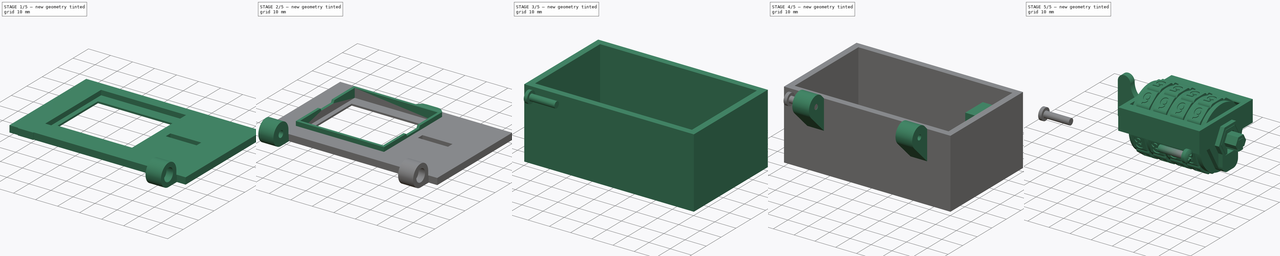
[diagram: build sequence overview — one tinted view per stage of 5, left to right]
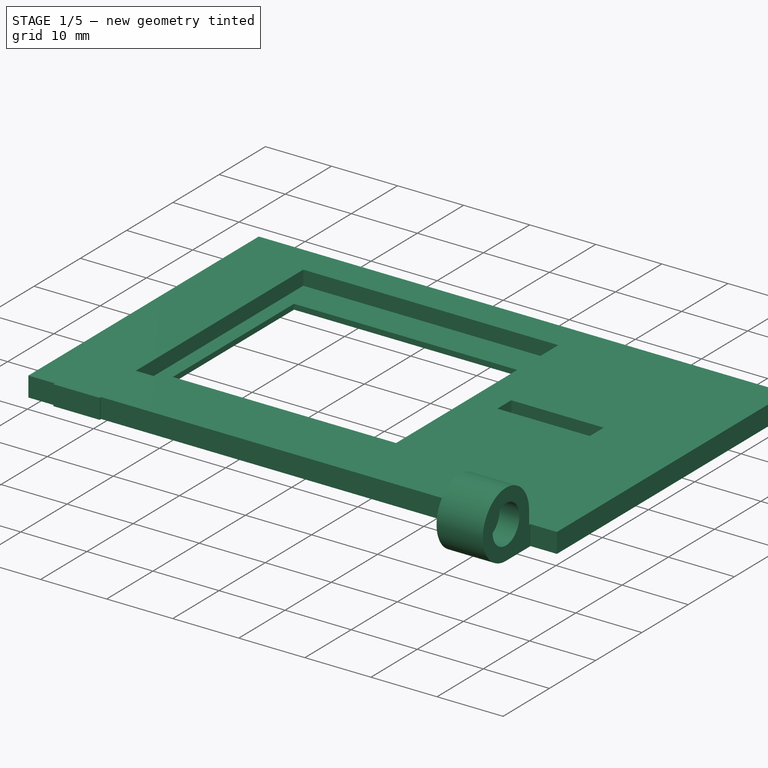
[diagram: stage 1 of 5 — iso view after this stage's code; geometry added in this stage tinted green]
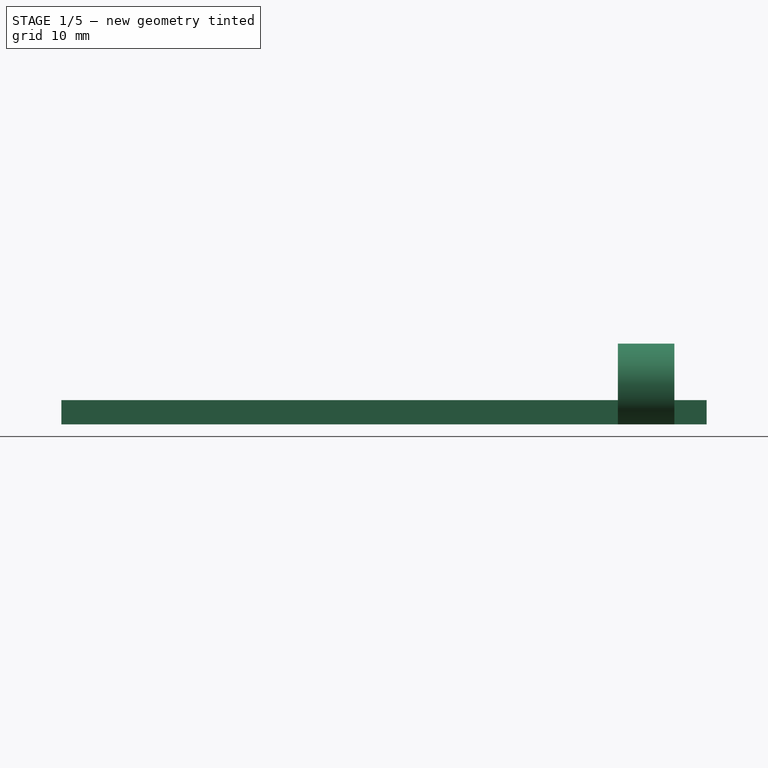
[diagram: stage 1 of 5 — front view after this stage's code; geometry added in this stage tinted green]
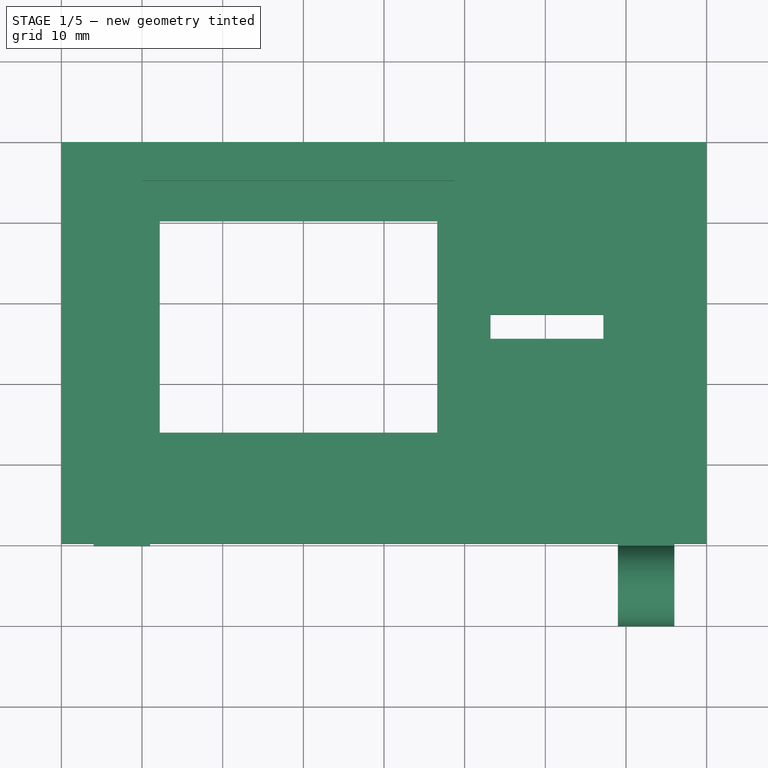
[diagram: stage 1 of 5 — top view after this stage's code; geometry added in this stage tinted green]
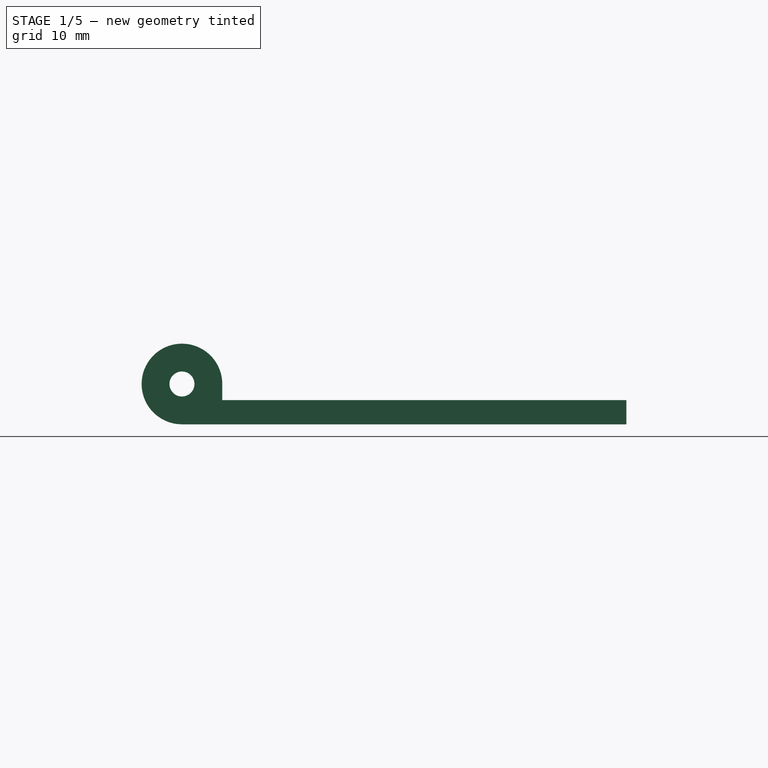
[diagram: stage 1 of 5 — right view after this stage's code; geometry added in this stage tinted green]
FCSTD DOCUMENT  (FreeCAD 0.20R29410 (Git))
Label: sample-box
Comment: FreeCAD-models by mgesteiro -- https://github.com/mgesteiro/FreeCAD-models
License: Creative Commons Attribution-ShareAlike
LicenseURL: http://creativecommons.org/licenses/by-sa/4.0/
objects: Sketcher::SketchObject×12, PartDesign::Pad×9, Part::Feature×4, PartDesign::Pocket×3, PartDesign::Fillet×3, PartDesign::Mirrored×2, PartDesign::Body×2, Part::FeaturePython×2, PartDesign::Chamfer×1, Part::Compound×1, App::DocumentObjectGroup×1
note: 55 computed .brp shape members not serialized (recipe doc carries the construction recipe); baked Part::Feature solids carry a one-line shape summary decoded from their .brp

FEATURE [Sketcher::SketchObject] Sketch  label="Sketch-cover-base"
  FullyConstrained = true
  MapMode = 5
  Support = -> [XY_Plane]
  sketch-geometry (20):
    g0: LineSegment StartX=-40 StartY=30 StartZ=0 EndX=40 EndY=30 EndZ=0
    g1: LineSegment StartX=-27.8 StartY=20.2 StartZ=0 EndX=6.6 EndY=20.2 EndZ=0
    g2: LineSegment StartX=6.6 StartY=20.2 StartZ=0 EndX=6.6 EndY=-6 EndZ=0
    g3: LineSegment StartX=6.6 StartY=-6 StartZ=0 EndX=-27.8 EndY=-6 EndZ=0
    g4: LineSegment StartX=-27.8 StartY=-6 StartZ=0 EndX=-27.8 EndY=20.2 EndZ=0
    g5: LineSegment StartX=13.2 StartY=8.6 StartZ=0 EndX=27.2 EndY=8.6 EndZ=0
    g6: LineSegment StartX=27.2 StartY=8.6 StartZ=0 EndX=27.2 EndY=5.6 EndZ=0
    g7: LineSegment StartX=27.2 StartY=5.6 StartZ=0 EndX=13.2 EndY=5.6 EndZ=0
    g8: LineSegment StartX=13.2 StartY=5.6 StartZ=0 EndX=13.2 EndY=8.6 EndZ=0
    g9: LineSegment StartX=-40 StartY=30 StartZ=0 EndX=-40 EndY=-19.8 EndZ=0
    g10: LineSegment StartX=-40 StartY=-19.8 StartZ=0 EndX=-36 EndY=-19.8 EndZ=0
    g11: LineSegment StartX=-36 StartY=-19.8 StartZ=0 EndX=-36 EndY=-20.1 EndZ=0
    g12: LineSegment StartX=-36 StartY=-20.1 StartZ=0 EndX=-29 EndY=-20.1 EndZ=0
    g13: LineSegment StartX=36 StartY=-20.1 StartZ=0 EndX=36 EndY=-19.8 EndZ=0
    g14: LineSegment StartX=36 StartY=-19.8 StartZ=0 EndX=40 EndY=-19.8 EndZ=0
    g15: LineSegment StartX=40 StartY=-19.8 StartZ=0 EndX=40 EndY=30 EndZ=0
    g16: LineSegment StartX=-29 StartY=-20.1 StartZ=0 EndX=-29 EndY=-19.8 EndZ=0
    g17: LineSegment StartX=-29 StartY=-19.8 StartZ=0 EndX=29 EndY=-19.8 EndZ=0
    g18: LineSegment StartX=29 StartY=-19.8 StartZ=0 EndX=29 EndY=-20.1 EndZ=0
    g19: LineSegment StartX=29 StartY=-20.1 StartZ=0 EndX=36 EndY=-20.1 EndZ=0
  constraints (59):
    c: DistanceX(g0,g0) = 80
    c: Coincident(g1,g2)
    c: Coincident(g2,g3)
    c: Coincident(g3,g4)
    c: Coincident(g4,g1)
    c: Horizontal(g1)
    c: Horizontal(g3)
    c: Vertical(g2)
    c: Vertical(g4)
    c: DistanceX(g1,g1) = 34.4
    c: DistanceY(g2,g2) = 26.2
    c: DistanceX(g2) = 6.6
    c: DistanceY(g2) = -6
    c: Coincident(g5,g6)
    c: Coincident(g6,g7)
    c: Coincident(g7,g8)
    c: Coincident(g8,g5)
    c: Horizontal(g5)
    c: Horizontal(g7)
    c: Vertical(g6)
    c: Vertical(g8)
    c: DistanceY(g6,g6) = 3
    c: DistanceX(g7,g7) = 14
    c: DistanceY(g5,g1) = 11.6
    c: DistanceX(g1,g5) = 6.6
    c: Coincident(g0,g9)
    c: Coincident(g9,g10)
    c: Horizontal(g10)
    c: Coincident(g10,g11)
    c: Vertical(g11)
    c: Coincident(g11,g12)
    c: Coincident(g19,g13)
    c: Vertical(g13)
    c: Coincident(g13,g14)
    c: Horizontal(g14)
    c: Coincident(g14,g15)
    c: Coincident(g15,g0)
    c: Horizontal(g10,g13)
    c: Equal(g10,g14)
    c: DistanceX(g14,g14) = 4
    c: DistanceY(g0) = 30
    c: Vertical(g16)
    c: Coincident(g16,g17)
    c: Horizontal(g17)
    c: Coincident(g17,g18)
    c: Vertical(g18)
    c: Coincident(g12,g16)
    c: Coincident(g19,g18)
    c: DistanceY(g9) = -19.8
    c: Horizontal(g12)
    c: DistanceX(g12,g12) = 7
    c: Vertical(g9)
    c: Symmetric(g0,g0,g-2)
    c: Horizontal(g16,g10)
    c: Horizontal(g12,g18)
    c: Horizontal(g19)
    c: Equal(g12,g19)
    c: Vertical(g15)
    c: DistanceY(g11,g11) = 0.3
FEATURE [PartDesign::Pad] Pad  label="Pad-cover-base"
  Direction = (0,0,1)
  Length = 0.8
  Length2 = 10
  Profile = -> Sketch
  ReferenceAxis = -> Sketch [N_Axis]
  Type = 0
FEATURE [Sketcher::SketchObject] Sketch001  label="Sketch-cover-lock-support"
  AttachmentOffset = pos=(0,0,0.8) rot=(0,0,1;0rad)
  ExternalGeometry = -> [Pad]
  FullyConstrained = true
  MapMode = 5
  Placement = pos=(0,0,0.8) rot=(0,0,1;0rad)
  Support = -> [XY_Plane]
  sketch-geometry (20):
    g0: LineSegment StartX=-29.9 StartY=25.2 StartZ=0 EndX=8.7 EndY=25.2 EndZ=0
    g1: LineSegment StartX=8.7 StartY=25.2 StartZ=0 EndX=8.7 EndY=-11 EndZ=0
    g2: LineSegment StartX=8.7 StartY=-11 StartZ=0 EndX=-29.9 EndY=-11 EndZ=0
    g3: LineSegment StartX=-29.9 StartY=-11 StartZ=0 EndX=-29.9 EndY=25.2 EndZ=0
    g4: LineSegment StartX=-40 StartY=30 StartZ=0 EndX=-40 EndY=-19.8 EndZ=0
    g5: LineSegment StartX=-40 StartY=-19.8 StartZ=0 EndX=-36 EndY=-19.8 EndZ=0
    g6: LineSegment StartX=-36 StartY=-19.8 StartZ=0 EndX=-36 EndY=-20.1 EndZ=0
    g7: LineSegment StartX=-36 StartY=-20.1 StartZ=0 EndX=-29 EndY=-20.1 EndZ=0
    g8: LineSegment StartX=-29 StartY=-20.1 StartZ=0 EndX=-29 EndY=-19.8 EndZ=0
    g9: LineSegment StartX=-29 StartY=-19.8 StartZ=0 EndX=29 EndY=-19.8 EndZ=0
    g10: LineSegment StartX=29 StartY=-19.8 StartZ=0 EndX=29 EndY=-20.1 EndZ=0
    g11: LineSegment StartX=29 StartY=-20.1 StartZ=0 EndX=36 EndY=-20.1 EndZ=0
    g12: LineSegment StartX=36 StartY=-20.1 StartZ=0 EndX=36 EndY=-19.8 EndZ=0
    g13: LineSegment StartX=36 StartY=-19.8 StartZ=0 EndX=40 EndY=-19.8 EndZ=0
    g14: LineSegment StartX=40 StartY=-19.8 StartZ=0 EndX=40 EndY=30 EndZ=0
    g15: LineSegment StartX=40 StartY=30 StartZ=0 EndX=-40 EndY=30 EndZ=0
    g16: LineSegment StartX=13.2 StartY=8.6 StartZ=0 EndX=27.2 EndY=8.6 EndZ=0
    g17: LineSegment StartX=27.2 StartY=8.6 StartZ=0 EndX=27.2 EndY=5.6 EndZ=0
    g18: LineSegment StartX=27.2 StartY=5.6 StartZ=0 EndX=13.2 EndY=5.6 EndZ=0
    g19: LineSegment StartX=13.2 StartY=5.6 StartZ=0 EndX=13.2 EndY=8.6 EndZ=0
  constraints (49):
    c: Coincident(g0,g1)
    c: Coincident(g1,g2)
    c: Coincident(g2,g3)
    c: Coincident(g3,g0)
    c: Horizontal(g0)
    c: Horizontal(g2)
    c: Vertical(g1)
    c: Vertical(g3)
    c: DistanceY(g1,g1) = 36.2
    c: DistanceX(g2,g2) = 38.6
    c: DistanceX(g1) = 8.7
    c: DistanceY(g1) = -11
    c: Coincident(g-3,g4)
    c: Coincident(g4,g-3)
    c: Coincident(g4,g5)
    c: Horizontal(g5)
    c: Coincident(g5,g6)
    c: Coincident(g6,g-4)
    c: Vertical(g6)
    c: Coincident(g6,g7)
    c: Coincident(g7,g-4)
    c: Coincident(g7,g8)
    c: Coincident(g8,g9)
    c: Coincident(g9,g10)
    c: Vertical(g10)
    c: Coincident(g10,g11)
    c: Horizontal(g11)
    c: Coincident(g11,g12)
    c: Vertical(g12)
    c: Coincident(g12,g13)
    c: Coincident(g13,g-5)
    c: Horizontal(g13)
    c: Coincident(g13,g14)
    c: Coincident(g14,g-5)
    c: Coincident(g14,g15)
    c: Coincident(g15,g4)
    c: Coincident(g8,g-6)
    c: Coincident(g9,g-6)
    c: Coincident(g11,g-7)
    c: Coincident(g16,g17)
    c: Coincident(g17,g18)
    c: Coincident(g18,g19)
    c: Coincident(g19,g16)
    c: Horizontal(g16)
    c: Horizontal(g18)
    c: Vertical(g17)
    c: Vertical(g19)
    c: Coincident(g16,g-8)
    c: Coincident(g17,g-9)
FEATURE [PartDesign::Pad] Pad001  label="Pad-cover-lock-support"
  BaseFeature = -> Pad
  Direction = (0,0,1)
  Length = 2.2
  Length2 = 10
  Profile = -> Sketch001
  ReferenceAxis = -> Sketch001 [N_Axis]
  Refine = true
  Type = 0
FEATURE [Sketcher::SketchObject] Sketch002  label="Sketch-cover-hinge"
  AttachmentOffset = pos=(0,0,36) rot=(0,0,1;0rad)
  ExternalGeometry = -> [Pad001]
  FullyConstrained = true
  MapMode = 5
  Placement = pos=(36,-8e-15,8e-15) rot=(0.57735,0.57735,0.57735;2.0944rad)
  Support = -> [YZ_Plane]
  sketch-geometry (4):
    g0: ArcOfCircle CenterX=-25.1 CenterY=5 CenterZ=0 NormalX=0 NormalY=0 NormalZ=1 AngleXU=0 Radius=5 StartAngle=0 EndAngle=4.71239
    g1: LineSegment StartX=-25.1 StartY=-1.33e-14 StartZ=0 EndX=-20.1 EndY=-1.33e-14 EndZ=0
    g2: LineSegment StartX=-20.1 StartY=-1.33e-14 StartZ=0 EndX=-20.1 EndY=5 EndZ=0
    g3: Circle CenterX=-25.1 CenterY=5 CenterZ=0 NormalX=0 NormalY=0 NormalZ=1 AngleXU=0 Radius=1.55
  constraints (9):
    c: Horizontal(g1)
    c: Coincident(g1,g2)
    c: Tangent(g2,g0) = -1.5708
    c: Vertical(g2)
    c: Radius(g0) = 5
    c: Coincident(g3,g0)
    c: Diameter(g3) = 3.1
    c: Tangent(g0,g1) = -1.5708
    c: Coincident(g1,g-3)
FEATURE [PartDesign::Pad] Pad002  label="Pad-cover-hinge"
  BaseFeature = -> Pad001
  Direction = (1,-2e-16,3e-16)
  Length = 7
  Length2 = 10
  Profile = -> Sketch002
  ReferenceAxis = -> Sketch002 [N_Axis]
  Refine = true
  Reversed = true
  Type = 0
FEATURE [Sketcher::SketchObject] Sketch003  label="Sketch-cover-hinge-screw-recess"
  ExternalGeometry = -> [Pad002]
  FullyConstrained = true
  MapMode = 5
  Placement = pos=(36,-1.62e-14,7.6e-15) rot=(0.57735,0.57735,0.57735;2.0944rad)
  Support = -> [Pad002]
  sketch-geometry (1):
    g0: Circle CenterX=-25.1 CenterY=5 CenterZ=0 NormalX=0 NormalY=0 NormalZ=1 AngleXU=0 Radius=2.9
  constraints (2):
    c: Diameter(g0) = 5.8
    c: Coincident(g0,g-3)
FEATURE [PartDesign::Pocket] Pocket  label="Pocket-cover-hinge-screw-recess"
  BaseFeature = -> Pad002
  Direction = (-1,3e-16,-1e-16)
  Length = 3
  Length2 = 5
  Profile = -> Sketch003
  ReferenceAxis = -> Sketch003 [N_Axis]
  Type = 0
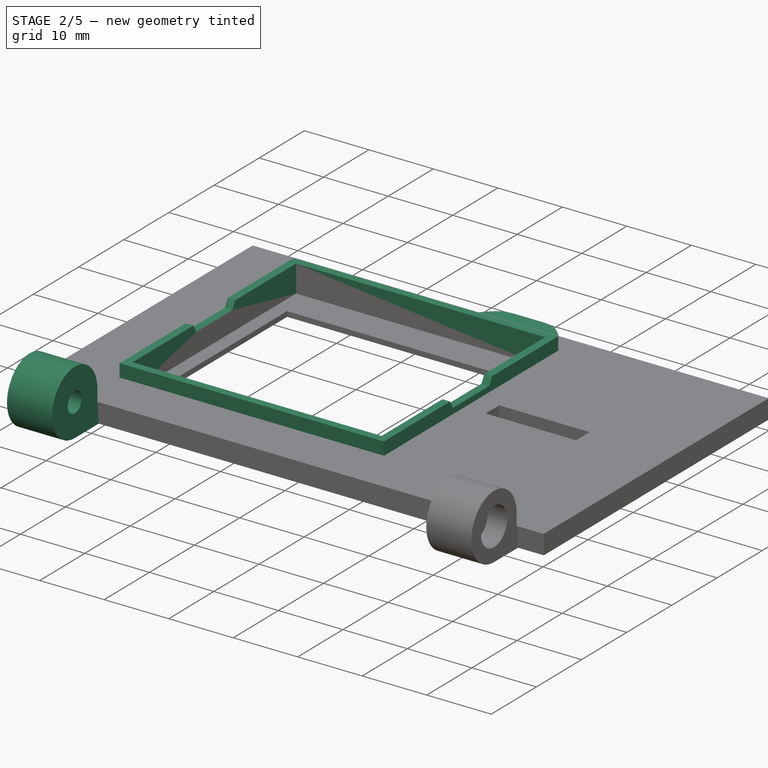
[diagram: stage 2 of 5 — iso view after this stage's code; geometry added in this stage tinted green]
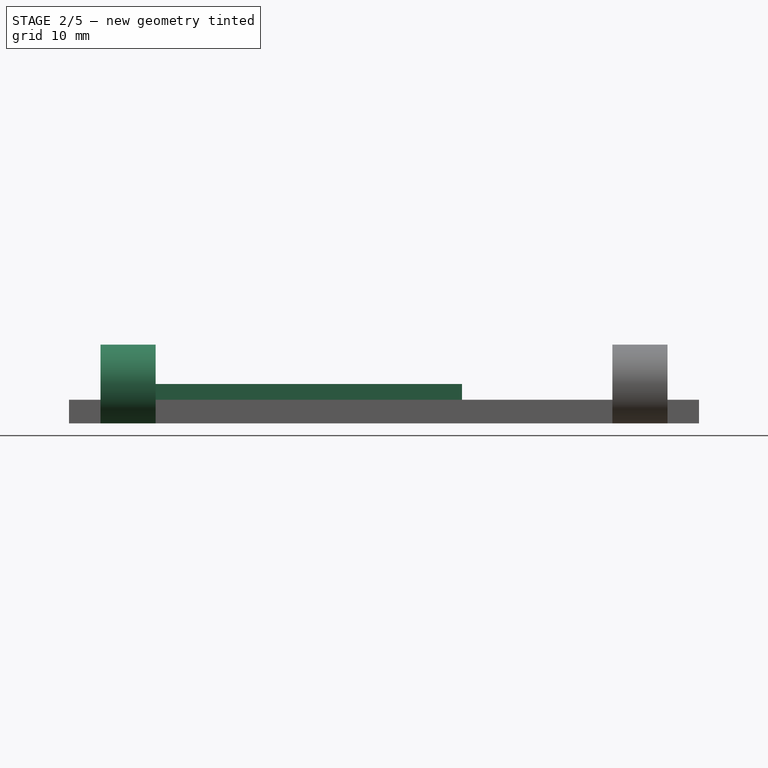
[diagram: stage 2 of 5 — front view after this stage's code; geometry added in this stage tinted green]
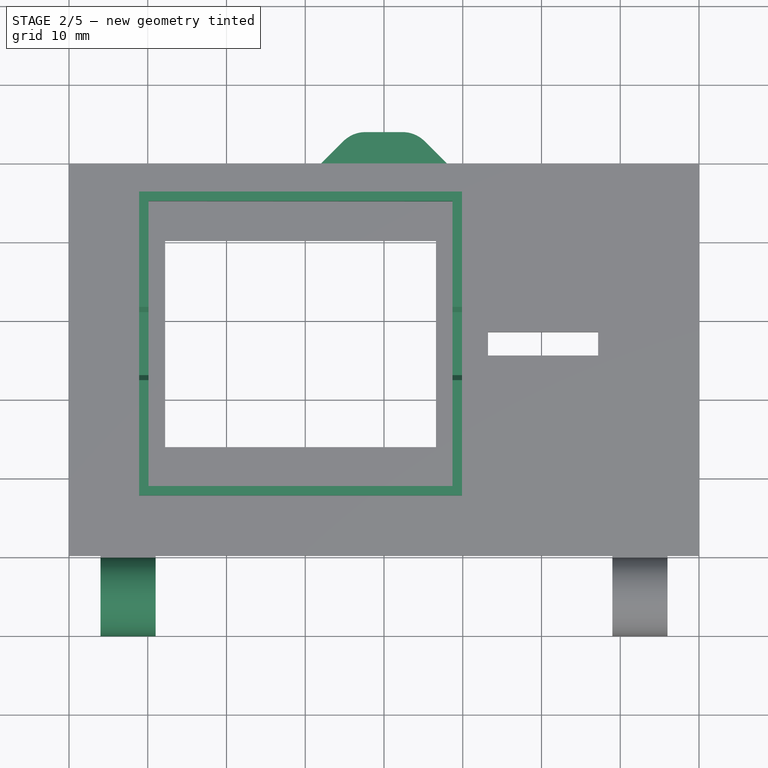
[diagram: stage 2 of 5 — top view after this stage's code; geometry added in this stage tinted green]
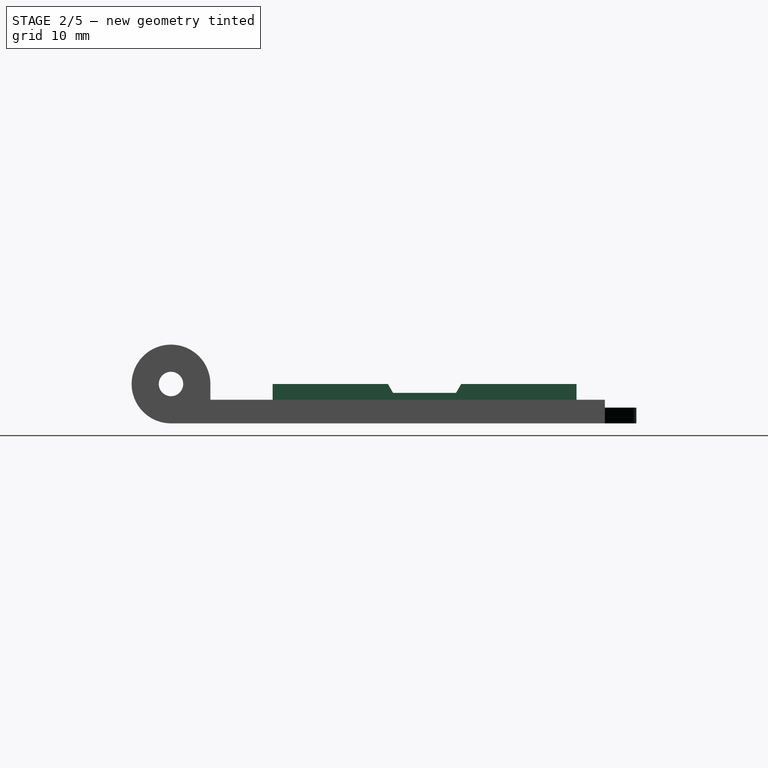
[diagram: stage 2 of 5 — right view after this stage's code; geometry added in this stage tinted green]
FEATURE [PartDesign::Mirrored] Mirrored  label="Mirrored-cover-hinges"
  BaseFeature = -> Pocket
  MirrorPlane = -> YZ_Plane
  Originals = -> [Pad002,Pocket]
  Refine = true
FEATURE [PartDesign::Body] Body001  label="Body-box"
  Group = -> [Sketch004,Pad003,Sketch005,Pad004,Sketch006,Pad005,Mirrored001,Sketch007,Pad006,Sketch008,Pocket001,Fillet,Fillet001]
  Origin = -> Origin001
  Tip = -> Fillet001
FEATURE [Sketcher::SketchObject] Sketch009  label="Sketch-lock-extra-support"
  ExternalGeometry = -> [Mirrored]
  FullyConstrained = true
  MapMode = 5
  Placement = pos=(0,0,3) rot=(0,0,1;0rad)
  Support = -> [Mirrored]
  sketch-geometry (8):
    g0: LineSegment StartX=8.7 StartY=25.2 StartZ=0 EndX=-29.9 EndY=25.2 EndZ=0
    g1: LineSegment StartX=-29.9 StartY=25.2 StartZ=0 EndX=-29.9 EndY=-11 EndZ=0
    g2: LineSegment StartX=-29.9 StartY=-11 StartZ=0 EndX=8.7 EndY=-11 EndZ=0
    g3: LineSegment StartX=8.7 StartY=-11 StartZ=0 EndX=8.7 EndY=25.2 EndZ=0
    g4: LineSegment StartX=9.9 StartY=26.4 StartZ=0 EndX=-31.1 EndY=26.4 EndZ=0
    g5: LineSegment StartX=-31.1 StartY=26.4 StartZ=0 EndX=-31.1 EndY=-12.2 EndZ=0
    g6: LineSegment StartX=-31.1 StartY=-12.2 StartZ=0 EndX=9.9 EndY=-12.2 EndZ=0
    g7: LineSegment StartX=9.9 StartY=-12.2 StartZ=0 EndX=9.9 EndY=26.4 EndZ=0
  constraints (22):
    c: Coincident(g0,g1)
    c: Coincident(g1,g2)
    c: Coincident(g2,g3)
    c: Coincident(g3,g0)
    c: Horizontal(g0)
    c: Horizontal(g2)
    c: Vertical(g1)
    c: Vertical(g3)
    c: Coincident(g4,g5)
    c: Coincident(g5,g6)
    c: Coincident(g6,g7)
    c: Coincident(g7,g4)
    c: Horizontal(g4)
    c: Horizontal(g6)
    c: Vertical(g5)
    c: Vertical(g7)
    c: DistanceX(g4,g0) = -1.2
    c: DistanceY(g4,g0) = -1.2
    c: DistanceX(g1,g5) = -1.2
    c: DistanceY(g1,g5) = -1.2
    c: Coincident(g0,g-4)
    c: Coincident(g1,g-3)
FEATURE [PartDesign::Pad] Pad007  label="Pad-lock-extra-support"
  BaseFeature = -> Mirrored
  Direction = (0,0,1)
  Length = 2
  Length2 = 10
  Profile = -> Sketch009
  ReferenceAxis = -> Sketch009 [N_Axis]
  Refine = true
  Type = 0
FEATURE [Sketcher::SketchObject] Sketch011  label="Sketch-cover-lid"
  FullyConstrained = true
  MapMode = 5
  Support = -> [XY_Plane]
  sketch-geometry (6):
    g0: LineSegment StartX=8 StartY=30 StartZ=0 EndX=-8 EndY=30 EndZ=0
    g1: LineSegment StartX=-8 StartY=30 StartZ=0 EndX=-5.17157 EndY=32.8284 EndZ=0
    g2: ArcOfCircle CenterX=-2.34315 CenterY=30 CenterZ=0 NormalX=0 NormalY=0 NormalZ=1 AngleXU=0 Radius=4 StartAngle=1.5708 EndAngle=2.35619
    g3: LineSegment StartX=-2.34315 StartY=34 StartZ=0 EndX=2.34315 EndY=34 EndZ=0
    g4: ArcOfCircle CenterX=2.34315 CenterY=30 CenterZ=0 NormalX=0 NormalY=0 NormalZ=1 AngleXU=0 Radius=4 StartAngle=0.785398 EndAngle=1.5708
    g5: LineSegment StartX=5.17157 StartY=32.8284 StartZ=0 EndX=8 EndY=30 EndZ=0
  constraints (14):
    c: Coincident(g0,g1)
    c: Tangent(g1,g2) = 1.5708
    c: Tangent(g2,g3) = 1.5708
    c: Tangent(g3,g4) = 1.5708
    c: Tangent(g4,g5) = 1.5708
    c: Coincident(g5,g0)
    c: Horizontal(g3)
    c: Angle(g0,g1) = 0.785398
    c: Radius(g2) = 4
    c: DistanceY(g0,g3) = 4
    c: Symmetric(g0,g0,g-2)
    c: Symmetric(g2,g4,g-2)
    c: DistanceX(g0,g0) = 16
    c: DistanceY(g0) = 30
FEATURE [Sketcher::SketchObject] Sketch012  label="Sketch-axis-recess"
  FullyConstrained = true
  MapMode = 5
  Placement = pos=(0,0,0) rot=(0.57735,0.57735,0.57735;2.0944rad)
  Support = -> [YZ_Plane]
  sketch-geometry (7):
    g0: LineSegment StartX=11.1 StartY=3.8718 StartZ=0 EndX=15.1 EndY=10.8 EndZ=0
    g1: LineSegment StartX=15.1 StartY=10.8 StartZ=0 EndX=11.1 EndY=17.7282 EndZ=0
    g2: LineSegment StartX=11.1 StartY=17.7282 StartZ=0 EndX=3.1 EndY=17.7282 EndZ=0
    g3: LineSegment StartX=3.1 StartY=17.7282 StartZ=0 EndX=-0.9 EndY=10.8 EndZ=0
    g4: LineSegment StartX=-0.9 StartY=10.8 StartZ=0 EndX=3.1 EndY=3.8718 EndZ=0
    g5: LineSegment StartX=3.1 StartY=3.8718 StartZ=0 EndX=11.1 EndY=3.8718 EndZ=0
    g6: Circle CenterX=7.1 CenterY=10.8 CenterZ=0 NormalX=0 NormalY=0 NormalZ=1 AngleXU=0 Radius=8
  constraints (17):
    c: Coincident(g0,g1)
    c: Coincident(g1,g2)
    c: Coincident(g2,g3)
    c: Coincident(g3,g4)
    c: Coincident(g4,g5)
    c: Coincident(g5,g0)
    c: Equal(g0, g1-g5) x5
    c: PointOnObject(g0,g6)
    c: PointOnObject(g1,g6)
    c: PointOnObject(g2,g6)
    c: PointOnObject(g3,g6)
    c: PointOnObject(g4,g6)
    c: PointOnObject(g5,g6)
    c: Horizontal(g2)
    c: DistanceX(g6) = 7.1
    c: DistanceY(g6) = 10.8
    c: Radius(g6) = 8
FEATURE [PartDesign::Pocket] Pocket002  label="Pocket-axis-recess"
  BaseFeature = -> Pad007
  Direction = (-1,2e-16,-3e-16)
  Length = 5
  Length2 = 5
  Midplane = true
  Profile = -> Sketch012
  ReferenceAxis = -> Sketch012 [N_Axis]
  Type = 1
FEATURE [PartDesign::Pad] Pad008  label="Pad-cover-lid"
  BaseFeature = -> Pocket002
  Direction = (0,0,1)
  Length = 2
  Length2 = 10
  Profile = -> Sketch011
  ReferenceAxis = -> Sketch011 [N_Axis]
  Refine = true
  Type = 0
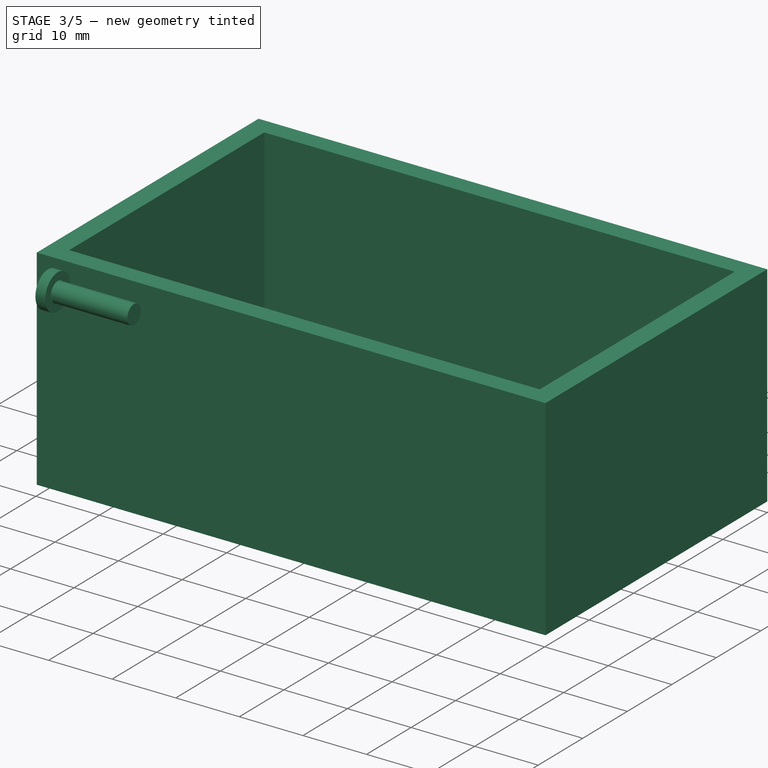
[diagram: stage 3 of 5 — iso view after this stage's code; geometry added in this stage tinted green]
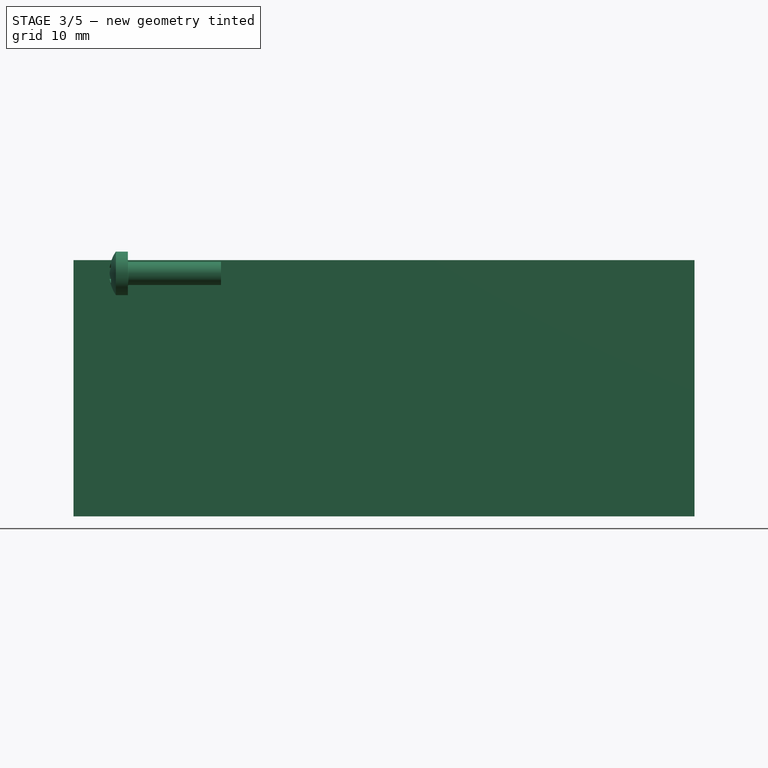
[diagram: stage 3 of 5 — front view after this stage's code; geometry added in this stage tinted green]
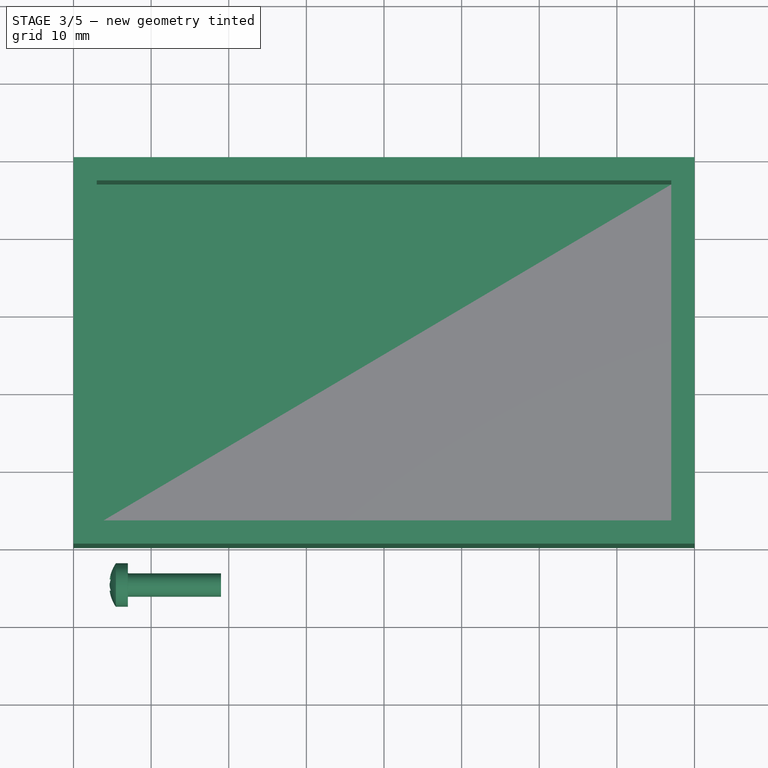
[diagram: stage 3 of 5 — top view after this stage's code; geometry added in this stage tinted green]
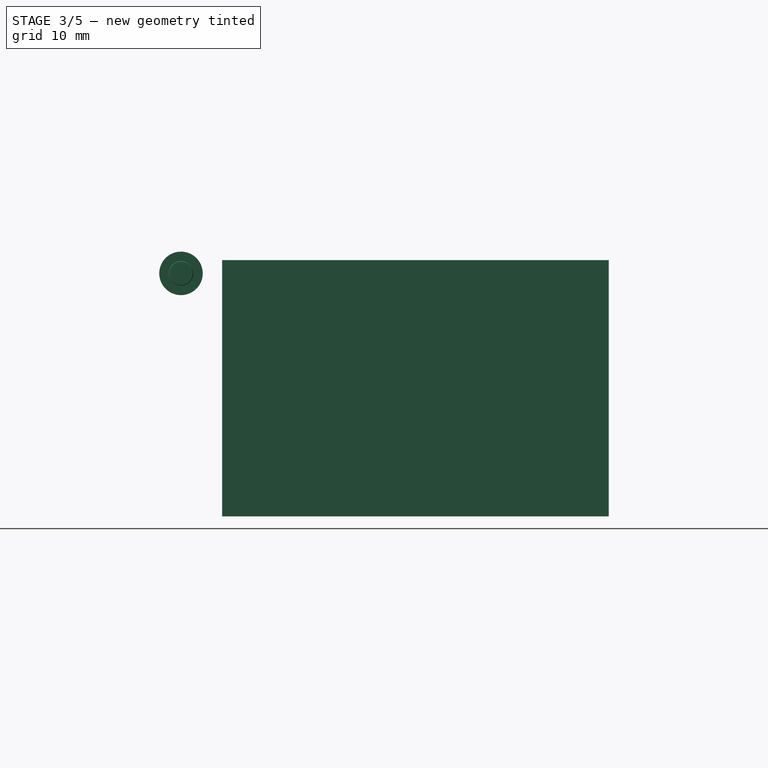
[diagram: stage 3 of 5 — right view after this stage's code; geometry added in this stage tinted green]
FEATURE [Sketcher::SketchObject] Sketch004  label="Sketch-box-base"
  FullyConstrained = true
  MapMode = 5
  Support = -> [XY_Plane001]
  sketch-geometry (4):
    g0: LineSegment StartX=-40 StartY=30 StartZ=0 EndX=40 EndY=30 EndZ=0
    g1: LineSegment StartX=40 StartY=30 StartZ=0 EndX=40 EndY=-19.8 EndZ=0
    g2: LineSegment StartX=40 StartY=-19.8 StartZ=0 EndX=-40 EndY=-19.8 EndZ=0
    g3: LineSegment StartX=-40 StartY=-19.8 StartZ=0 EndX=-40 EndY=30 EndZ=0
  constraints (11):
    c: Coincident(g0,g1)
    c: Coincident(g1,g2)
    c: Coincident(g2,g3)
    c: Coincident(g3,g0)
    c: Horizontal(g2)
    c: Vertical(g1)
    c: Vertical(g3)
    c: Symmetric(g0,g0,g-2)
    c: DistanceX(g0,g0) = 80
    c: DistanceY(g0) = 30
    c: DistanceY(g2) = -19.8
FEATURE [PartDesign::Pad] Pad003  label="Pad-box-base"
  Direction = (0,0,1)
  Length = 3
  Length2 = 10
  Profile = -> Sketch004
  ReferenceAxis = -> Sketch004 [N_Axis]
  Type = 0
FEATURE [Sketcher::SketchObject] Sketch005  label="Sketch-box-walls"
  ExternalGeometry = -> [Pad003]
  FullyConstrained = true
  MapMode = 5
  Placement = pos=(0,0,3) rot=(0,0,1;0rad)
  Support = -> [Pad003]
  sketch-geometry (8):
    g0: LineSegment StartX=40 StartY=30 StartZ=0 EndX=-40 EndY=30 EndZ=0
    g1: LineSegment StartX=-40 StartY=30 StartZ=0 EndX=-40 EndY=-19.8 EndZ=0
    g2: LineSegment StartX=-40 StartY=-19.8 StartZ=0 EndX=40 EndY=-19.8 EndZ=0
    g3: LineSegment StartX=40 StartY=-19.8 StartZ=0 EndX=40 EndY=30 EndZ=0
    g4: LineSegment StartX=-37 StartY=27 StartZ=0 EndX=37 EndY=27 EndZ=0
    g5: LineSegment StartX=37 StartY=27 StartZ=0 EndX=37 EndY=-16.8 EndZ=0
    g6: LineSegment StartX=37 StartY=-16.8 StartZ=0 EndX=-37 EndY=-16.8 EndZ=0
    g7: LineSegment StartX=-37 StartY=-16.8 StartZ=0 EndX=-37 EndY=27 EndZ=0
  constraints (22):
    c: Coincident(g0,g1)
    c: Coincident(g1,g2)
    c: Coincident(g2,g3)
    c: Coincident(g3,g0)
    c: Horizontal(g0)
    c: Horizontal(g2)
    c: Vertical(g1)
    c: Vertical(g3)
    c: Coincident(g0,g-3)
    c: Coincident(g1,g-4)
    c: Coincident(g4,g5)
    c: Coincident(g5,g6)
    c: Coincident(g6,g7)
    c: Coincident(g7,g4)
    c: Horizontal(g4)
    c: Horizontal(g6)
    c: Vertical(g5)
    c: Vertical(g7)
    c: DistanceX(g5,g2) = 3
    c: DistanceY(g5,g2) = -3
    c: DistanceX(g4,g0) = -3
    c: DistanceY(g4,g0) = 3
FEATURE [PartDesign::Pad] Pad004  label="Pad-box-walls"
  BaseFeature = -> Pad003
  Direction = (0,0,1)
  Length = 30
  Length2 = 10
  Profile = -> Sketch005
  ReferenceAxis = -> Sketch005 [N_Axis]
  Refine = true
  Type = 0
FEATURE [PartDesign::Fillet] Fillet002  label="Fillet-cover"
  Base = -> Pad008 [Edge54,Edge53,Edge60,Edge61]
  BaseFeature = -> Pad008
  Radius = 3.99
  SupportTransform = false
  UseAllEdges = false
FEATURE [PartDesign::Chamfer] Chamfer  label="Chamfer-cover"
  Angle = 45
  Base = -> Fillet002 [Edge94,Edge40,Edge28,Edge69,Edge74,Edge76,Edge19,Edge17,Edge20,Edge73,Edge18,Edge102,Edge100,Edge58,Edge45,Edge63]
  BaseFeature = -> Fillet002
  ChamferType = 0
  FlipDirection = false
  Size = 0.4
  Size2 = 1
  SupportTransform = false
  UseAllEdges = false
FEATURE [Part::FeaturePython] Screw001  label="M3x12-Screw001"  # Fasteners workbench fastener (typed FeaturePython)
  Placement = pos=(-33,-25.1,31.3) rot=(0,-1,0;1.5708rad)
  baseObject = -> Body [Edge159]
  diameter = 4
  invert = false
  leftHanded = false
  length = 5
  lengthCustom = 12
  matchOuter = true
  offset = 0
  thread = false
  type = 35
FEATURE [App::DocumentObjectGroup] Group  label="screws"
  Group = -> [Screw001,Screw]
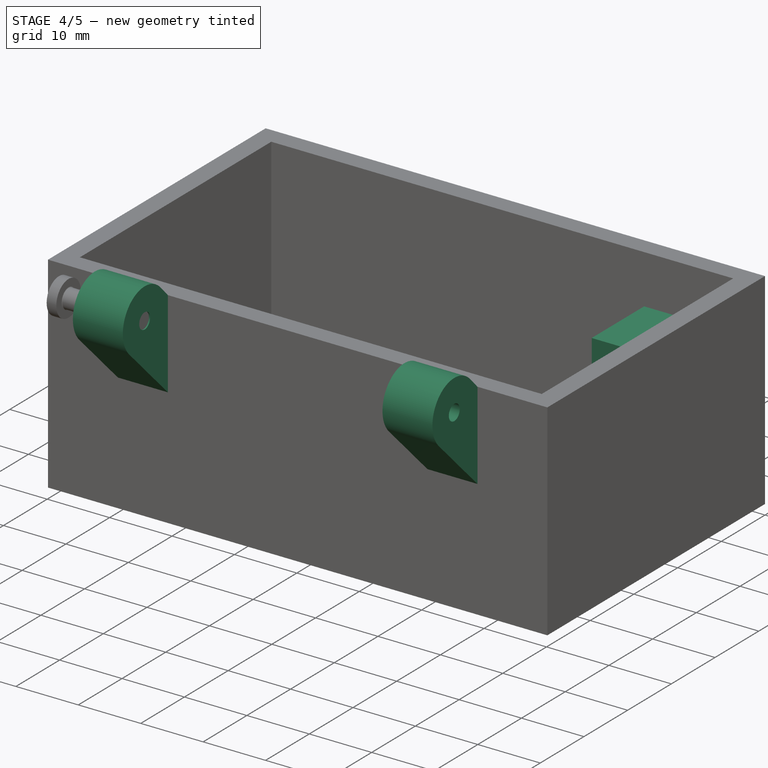
[diagram: stage 4 of 5 — iso view after this stage's code; geometry added in this stage tinted green]
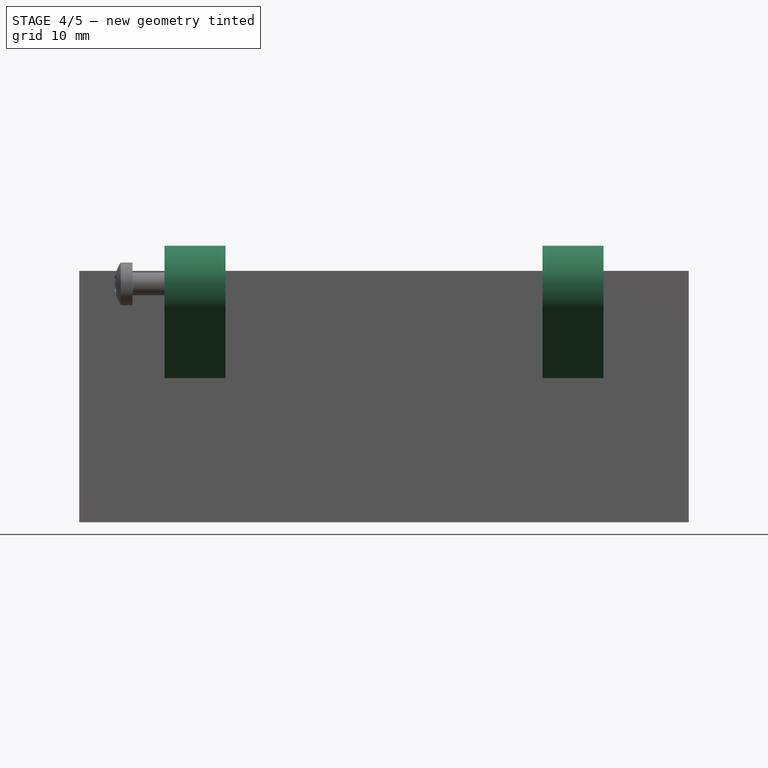
[diagram: stage 4 of 5 — front view after this stage's code; geometry added in this stage tinted green]
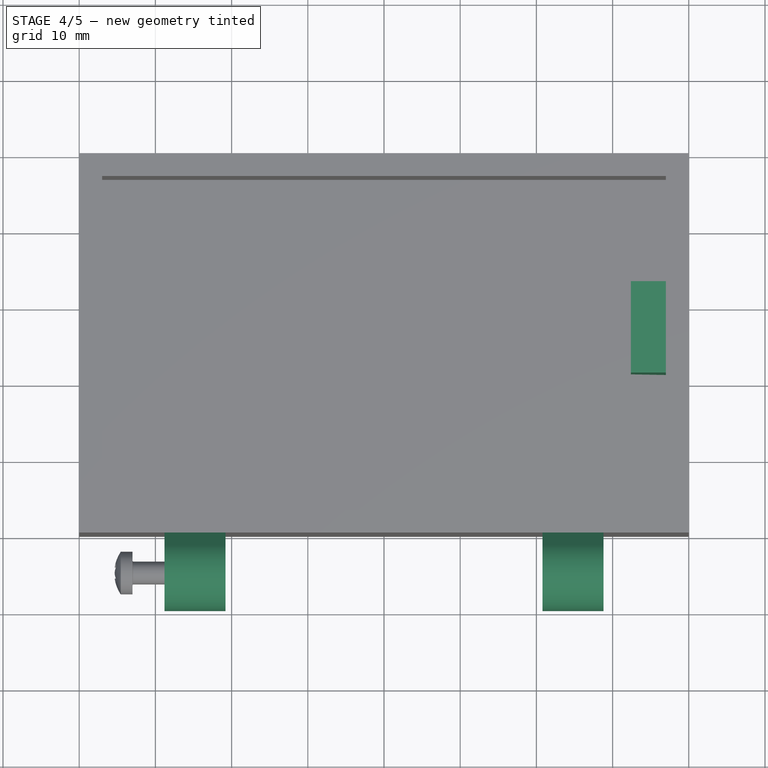
[diagram: stage 4 of 5 — top view after this stage's code; geometry added in this stage tinted green]
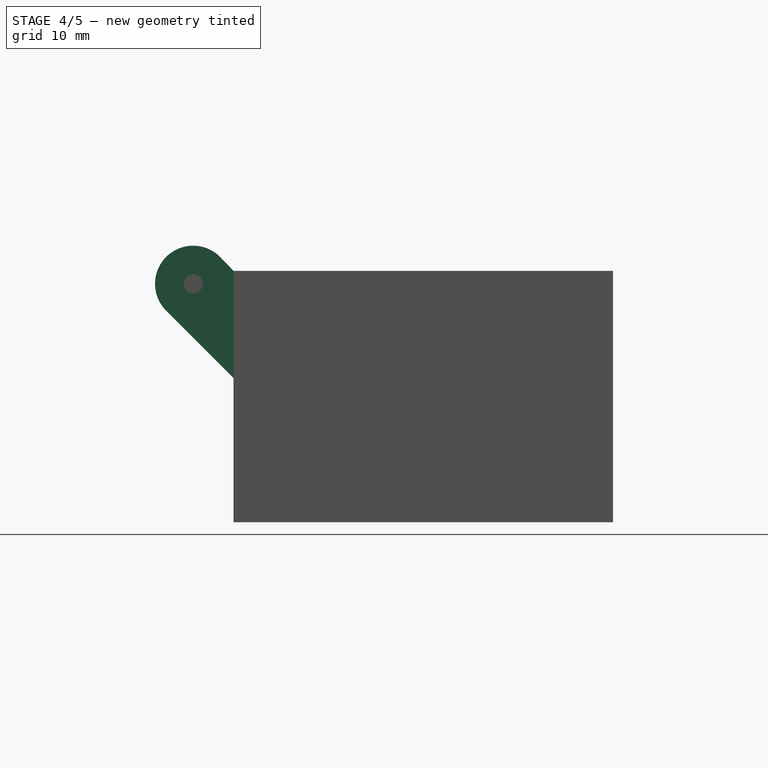
[diagram: stage 4 of 5 — right view after this stage's code; geometry added in this stage tinted green]
FEATURE [Sketcher::SketchObject] Sketch006  label="Sketch-box-hinge"
  AttachmentOffset = pos=(0,0,-11.2) rot=(0,0,1;0rad)
  ExternalGeometry = -> [Pad004]
  FullyConstrained = true
  MapMode = 5
  Placement = pos=(-28.8,0,0) rot=(0.57735,-0.57735,-0.57735;2.0944rad)
  Support = -> [Pad004]
  sketch-geometry (7):
    g0: LineSegment StartX=19.8 StartY=18.9289 StartZ=0 EndX=28.6355 EndY=27.7645 EndZ=0
    g1: ArcOfCircle CenterX=25.1 CenterY=31.3 CenterZ=0 NormalX=0 NormalY=0 NormalZ=1 AngleXU=0 Radius=5 StartAngle=5.49779 EndAngle=8.65952
    g2: LineSegment StartX=21.494 StartY=34.7636 StartZ=0 EndX=19.8 EndY=33 EndZ=0
    g3: LineSegment StartX=19.8 StartY=33 StartZ=0 EndX=19.8 EndY=18.9289 EndZ=0
    g4: Circle CenterX=25.1 CenterY=31.3 CenterZ=0 NormalX=0 NormalY=0 NormalZ=1 AngleXU=0 Radius=1.25
    g5: LineSegment StartX=19.8 StartY=33 StartZ=0 EndX=19.8 EndY=36.3 EndZ=0
    g6: LineSegment StartX=19.8 StartY=36.3 StartZ=0 EndX=25.1 EndY=36.3 EndZ=0
  constraints (17):
    c: PointOnObject(g0,g-3)
    c: Tangent(g0,g1) = -1.5708
    c: Tangent(g1,g2) = -1.5708
    c: Coincident(g3,g0)
    c: Angle(g-3,g0) = 2.35619
    c: DistanceX(g2,g1) = 5.3
    c: Radius(g1) = 5
    c: Coincident(g4,g1)
    c: Diameter(g4) = 2.5
    c: Coincident(g2,g3)
    c: Coincident(g2,g-3)
    c: Coincident(g5,g2)
    c: Vertical(g5)
    c: Coincident(g6,g5)
    c: Tangent(g6,g1) = 1.5708
    c: Perpendicular(g5,g6)
    c: DistanceY(g5,g5) = 3.3
FEATURE [PartDesign::Pad] Pad005  label="Pad-box-hinge"
  BaseFeature = -> Pad004
  Direction = (-1,0,0)
  Length = 8
  Length2 = 10
  Profile = -> Sketch006
  ReferenceAxis = -> Sketch006 [N_Axis]
  Reversed = true
  Type = 0
FEATURE [PartDesign::Mirrored] Mirrored001  label="Mirrored-box-hinges"
  BaseFeature = -> Pad005
  MirrorPlane = -> YZ_Plane001
  Originals = -> [Pad005]
  Refine = true
FEATURE [Part::Feature] Group001  label="digits"
  shape: bbox 30.46 x 30 x 34 mm, 1245 faces, 5 solids (baked)
FEATURE [Part::Feature] Part002001  label="axis"
  shape: bbox 15.39 x 19.46 x 42.4 mm, 46 faces, 2 solids (baked)
FEATURE [Part::Feature] Body004001  label="holder"
  Placement = pos=(0,0,-4.2) rot=(0,0,1;3.14159rad)
  shape: bbox 36 x 22.8 x 38.4 mm, 43 faces (baked)
FEATURE [Sketcher::SketchObject] Sketch007  label="Sketch-locking-support"
  AttachmentOffset = pos=(0,0,-7.2) rot=(0,0,1;0rad)
  ExternalGeometry = -> [Mirrored001]
  FullyConstrained = true
  MapMode = 5
  Placement = pos=(0,7.2,1.6e-15) rot=(1,0,0;1.5708rad)
  Support = -> [XZ_Plane001]
  sketch-geometry (4):
    g0: LineSegment StartX=37 StartY=33 StartZ=0 EndX=32.4 EndY=33 EndZ=0
    g1: LineSegment StartX=32.4 StartY=33 StartZ=0 EndX=32.4 EndY=19 EndZ=0
    g2: LineSegment StartX=32.4 StartY=19 StartZ=0 EndX=37 EndY=14.4 EndZ=0
    g3: LineSegment StartX=37 StartY=14.4 StartZ=0 EndX=37 EndY=33 EndZ=0
  constraints (11):
    c: Horizontal(g0)
    c: Coincident(g0,g1)
    c: Vertical(g1)
    c: Coincident(g1,g2)
    c: Coincident(g2,g3)
    c: Coincident(g3,g0)
    c: Angle(g3,g2) = 0.785398
    c: DistanceX(g0,g0) = 4.6
    c: DistanceY(g1,g1) = 14
    c: Vertical(g3)
    c: Coincident(g0,g-3)
FEATURE [PartDesign::Pad] Pad006  label="Pad-locking-support"
  BaseFeature = -> Mirrored001
  Direction = (0,-1,-2e-16)
  Length = 12
  Length2 = 10
  Midplane = true
  Profile = -> Sketch007
  ReferenceAxis = -> Sketch007 [N_Axis]
  Refine = true
  Type = 0
FEATURE [Sketcher::SketchObject] Sketch008  label="Sketch-locking-hole"
  FullyConstrained = true
  MapMode = 5
  Placement = pos=(32.4,0,0) rot=(0.57735,-0.57735,-0.57735;2.0944rad)
  Support = -> [Pad006]
  sketch-geometry (7):
    g0: LineSegment StartX=-5.1 StartY=21.7359 StartZ=0 EndX=-3.1 EndY=25.2 EndZ=0
    g1: LineSegment StartX=-3.1 StartY=25.2 StartZ=0 EndX=-5.1 EndY=28.6641 EndZ=0
    g2: LineSegment StartX=-5.1 StartY=28.6641 StartZ=0 EndX=-9.1 EndY=28.6641 EndZ=0
    g3: LineSegment StartX=-9.1 StartY=28.6641 StartZ=0 EndX=-11.1 EndY=25.2 EndZ=0
    g4: LineSegment StartX=-11.1 StartY=25.2 StartZ=0 EndX=-9.1 EndY=21.7359 EndZ=0
    g5: LineSegment StartX=-9.1 StartY=21.7359 StartZ=0 EndX=-5.1 EndY=21.7359 EndZ=0
    g6: Circle CenterX=-7.1 CenterY=25.2 CenterZ=0 NormalX=0 NormalY=0 NormalZ=1 AngleXU=0 Radius=4
  constraints (17):
    c: Coincident(g0,g1)
    c: Coincident(g1,g2)
    c: Coincident(g2,g3)
    c: Coincident(g3,g4)
    c: Coincident(g4,g5)
    c: Coincident(g5,g0)
    c: Equal(g0, g1-g5) x5
    c: PointOnObject(g0,g6)
    c: PointOnObject(g1,g6)
    c: PointOnObject(g2,g6)
    c: PointOnObject(g3,g6)
    c: PointOnObject(g4,g6)
    c: PointOnObject(g5,g6)
    c: Horizontal(g2)
    c: Radius(g6) = 4
    c: DistanceX(g6) = -7.1
    c: DistanceY(g6) = 25.2
FEATURE [PartDesign::Pocket] Pocket001  label="Pocket-locking-hole"
  BaseFeature = -> Pad006
  Direction = (1,0,0)
  Length = 4.6
  Length2 = 5
  Profile = -> Sketch008
  ReferenceAxis = -> Sketch008 [N_Axis]
  Type = 0
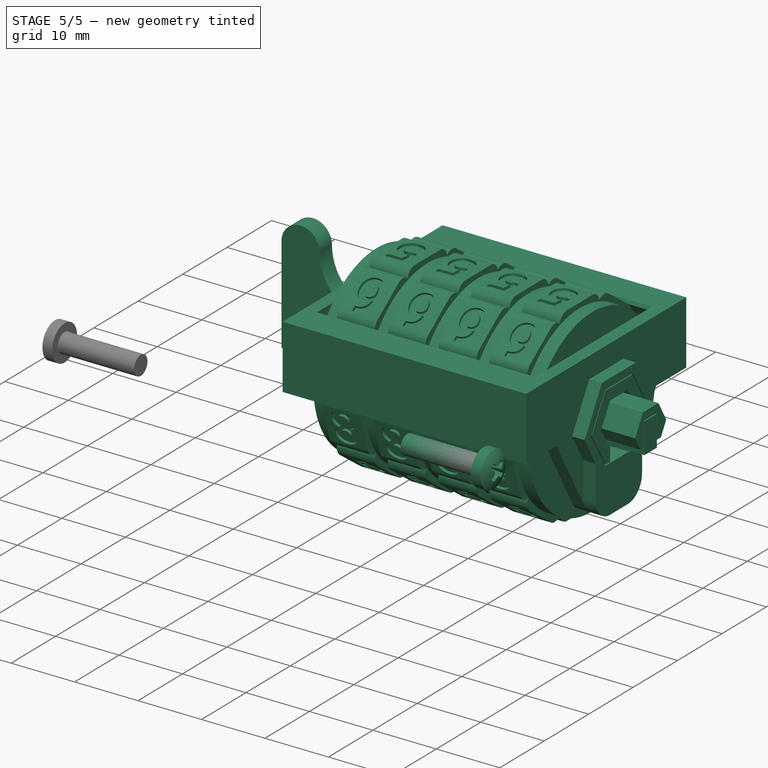
[diagram: stage 5 of 5 — iso view after this stage's code; geometry added in this stage tinted green]
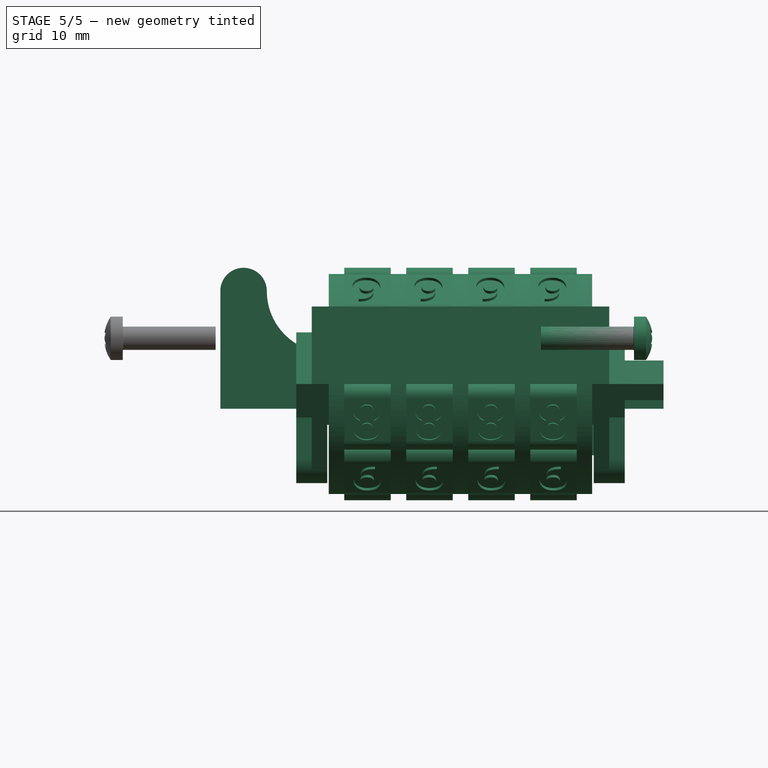
[diagram: stage 5 of 5 — front view after this stage's code; geometry added in this stage tinted green]
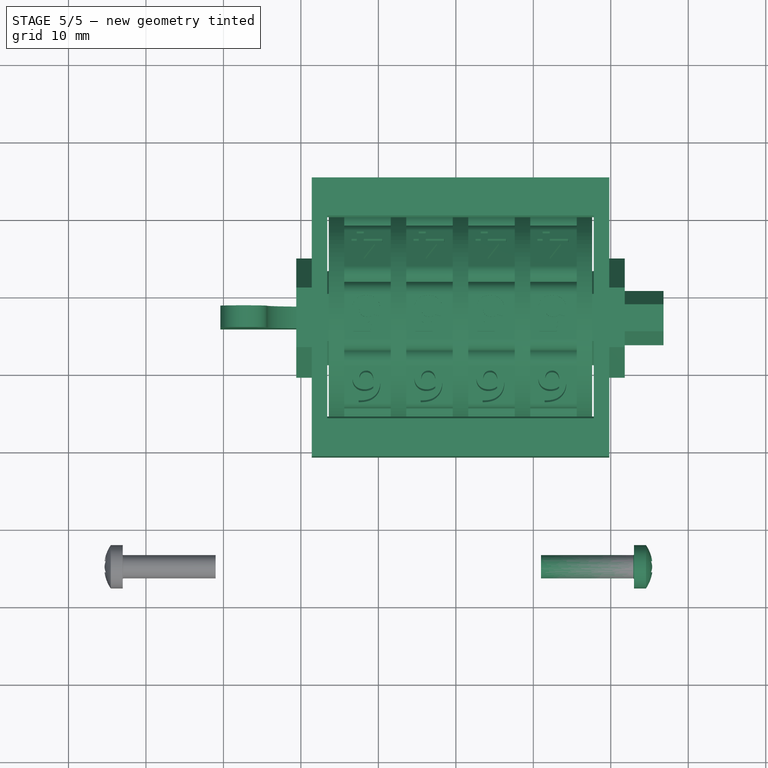
[diagram: stage 5 of 5 — top view after this stage's code; geometry added in this stage tinted green]
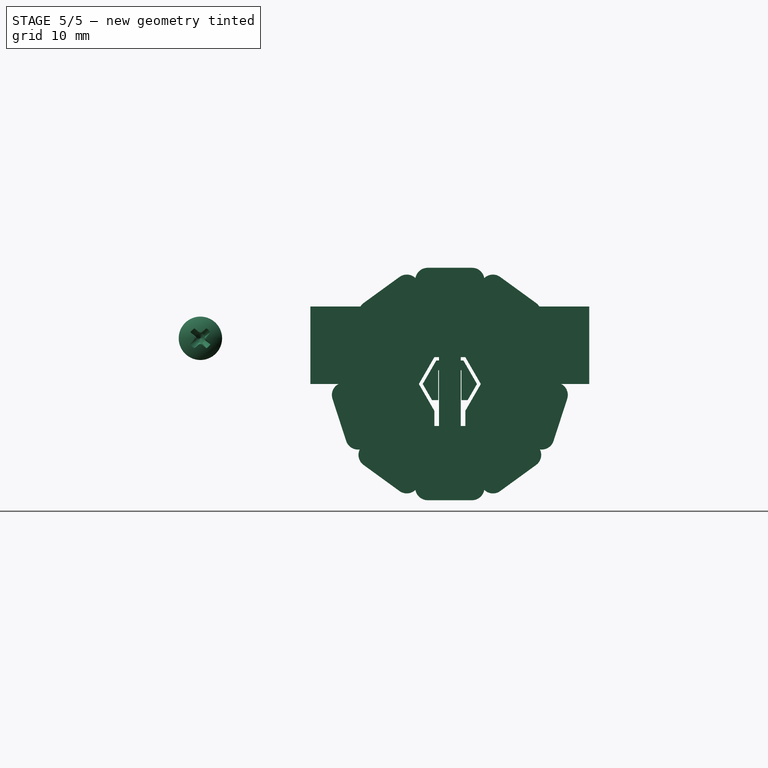
[diagram: stage 5 of 5 — right view after this stage's code; geometry added in this stage tinted green]
FEATURE [PartDesign::Fillet] Fillet  label="Fillet-interior"
  Base = -> Pocket001 [Edge48,Edge45,Edge63,Edge44,Edge65,Edge46,Edge64,Edge47]
  BaseFeature = -> Pocket001
  Radius = 1
  SupportTransform = false
  UseAllEdges = false
FEATURE [PartDesign::Fillet] Fillet001  label="Fillet-exterior"
  Base = -> Fillet [Edge52,Edge51,Face34,Edge54,Edge63]
  BaseFeature = -> Fillet
  Radius = 4
  SupportTransform = false
  UseAllEdges = false
FEATURE [PartDesign::Body] Body  label="Body-cover"
  Group = -> [Sketch,Pad,Sketch001,Pad001,Sketch002,Pad002,Sketch003,Pocket,Mirrored,Sketch009,Pad007,Sketch011,Sketch012,Pocket002,Pad008,Fillet002,Chamfer]
  Origin = -> Origin
  Placement = pos=(0,0,36.3) rot=(0,1,0;3.14159rad)
  Tip = -> Chamfer
FEATURE [Part::FeaturePython] Screw  label="M3x12-Screw"  # Fasteners workbench fastener (typed FeaturePython)
  Placement = pos=(33,-25.1,31.3) rot=(0,1,0;1.5708rad)
  baseObject = -> Body001 [Edge108]
  diameter = 4
  invert = true
  leftHanded = false
  length = 5
  lengthCustom = 12
  matchOuter = false
  offset = 4.2
  thread = false
  type = 35
FEATURE [Part::Feature] Part001001  label="key"
  shape: bbox 7 x 24.2 x 57.2 mm, 41 faces, 2 solids (baked)
FEATURE [Part::Compound] Compound  label="Combination-Lock"
  Links = -> [Group001,Part002001,Body004001,Part001001]
  Placement = pos=(25.6,7.1,25.4) rot=(0.57735,0.57735,-0.57735;4.18879rad)
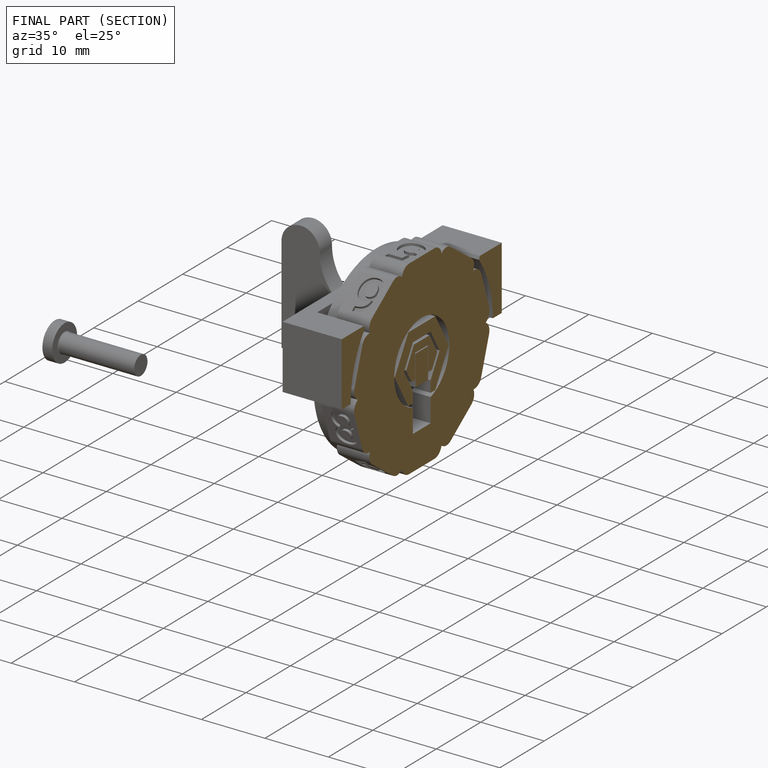
[diagram: finished part — half-section view (interior)]
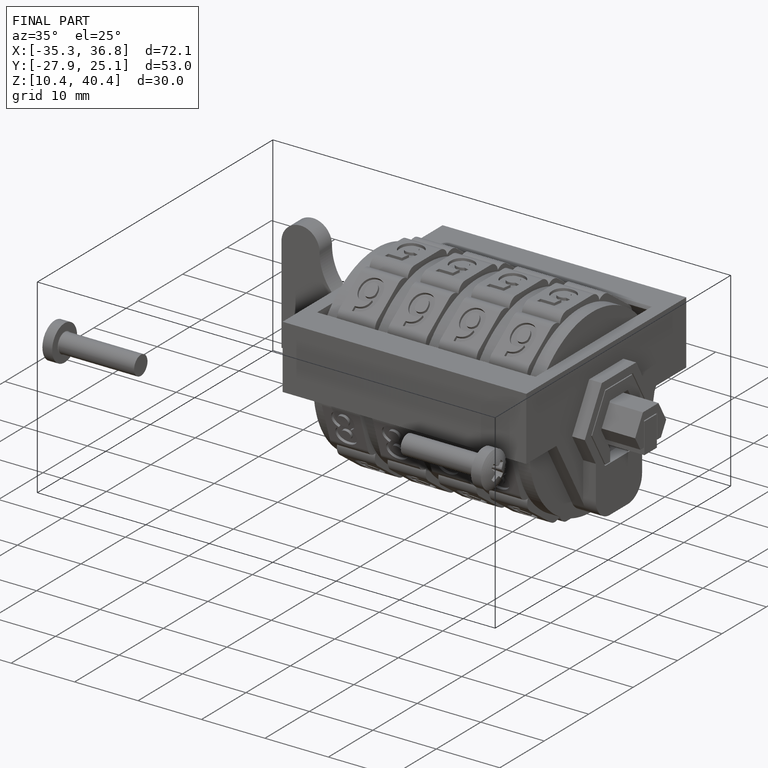
[diagram: finished part — iso view with bounding-box wireframe]
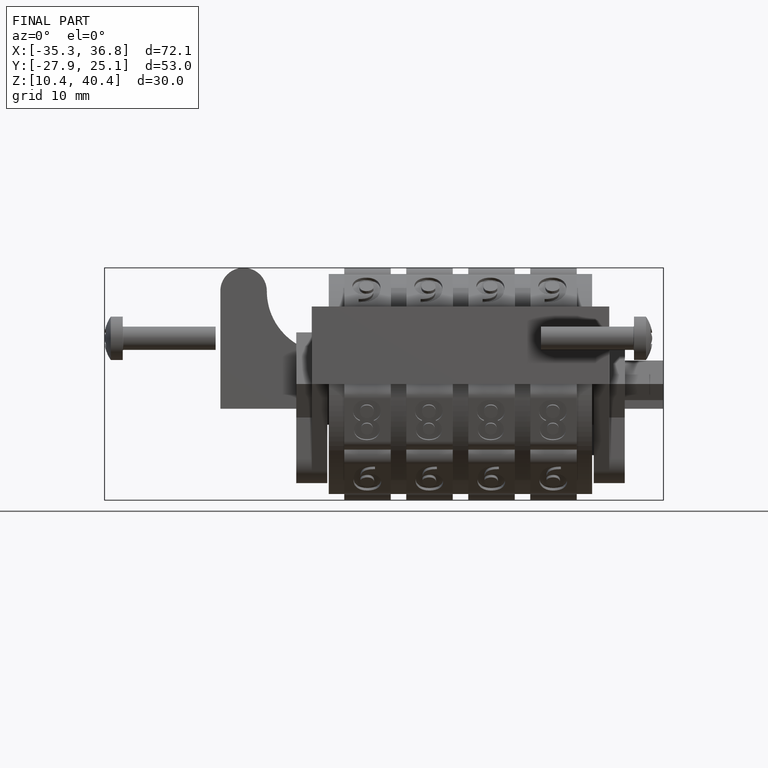
[diagram: finished part — front view with bounding-box wireframe]
